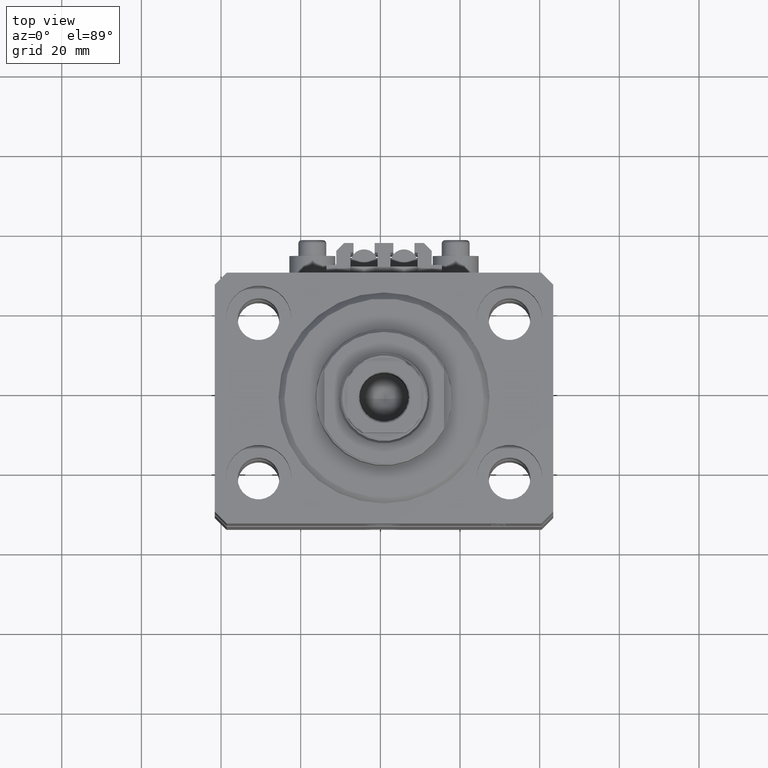
[diagram: clean part render]
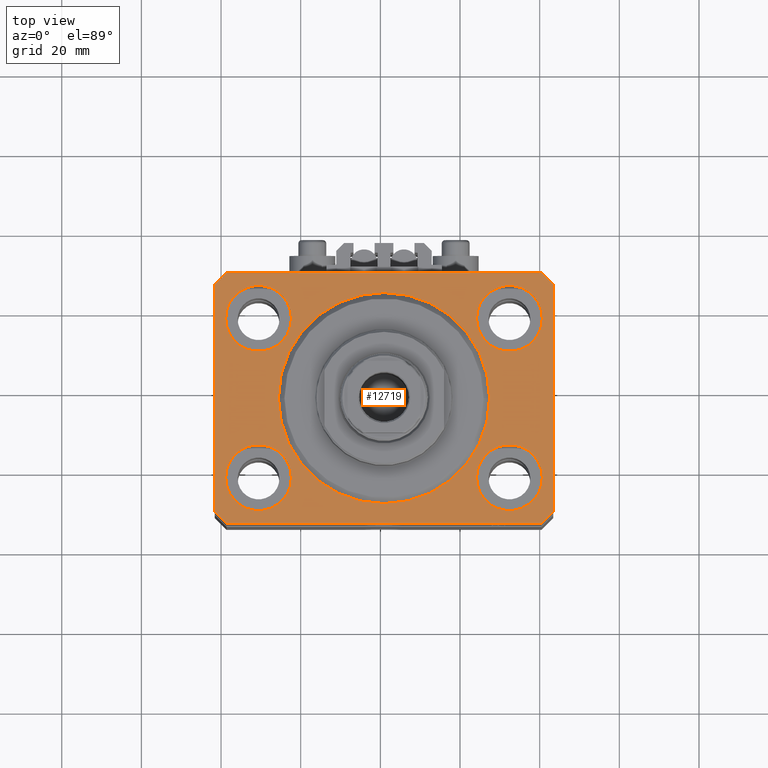
[diagram: same view with one face highlighted and labeled with its STEP entity id]
A machine part, top view. The second image highlights one B-rep face of the part: STEP entity #12719.
In plain terms, the highlighted planar face has unit normal (0, 0, 1).
Its self-contained STEP definition (entity closure, byte-faithful):
#265 = CARTESIAN_POINT ( 'NONE',  ( -31.50000000000000000, 20.00000000000000000, 0.000000000000000000 ) ) ;
#335 = CARTESIAN_POINT ( 'NONE',  ( 39.74999999999999289, -20.00000000000000000, 0.000000000000000000 ) ) ;
#638 = AXIS2_PLACEMENT_3D ( 'NONE', #36630, #36871, #33166 ) ;
#776 = VERTEX_POINT ( 'NONE', #40071 ) ;
#1061 = EDGE_CURVE ( 'NONE', #18267, #28184, #1421, .T. ) ;
#1243 = CIRCLE ( 'NONE', #2035, 8.250000000000000000 ) ;
#1421 = LINE ( 'NONE', #46703, #17264 ) ;
#1611 = ORIENTED_EDGE ( 'NONE', *, *, #1061, .T. ) ;
#1661 = ORIENTED_EDGE ( 'NONE', *, *, #22694, .F. ) ;
#1673 = LINE ( 'NONE', #5385, #27184 ) ;
#1680 = EDGE_CURVE ( 'NONE', #39822, #10659, #7166, .T. ) ;
#2035 = AXIS2_PLACEMENT_3D ( 'NONE', #24439, #24687, #8856 ) ;
#2065 = ORIENTED_EDGE ( 'NONE', *, *, #38775, .F. ) ;
#2165 = EDGE_LOOP ( 'NONE', ( #39794, #46337 ) ) ;
#2565 = CARTESIAN_POINT ( 'NONE',  ( 39.50000000000056843, 31.50000000000000000, 0.000000000000000000 ) ) ;
#2636 = DIRECTION ( 'NONE',  ( 1.000000000000000000, 0.000000000000000000, 0.000000000000000000 ) ) ;
#2697 = CARTESIAN_POINT ( 'NONE',  ( -23.25000000000000000, 20.00000000000000000, 0.000000000000000000 ) ) ;
#3052 = DIRECTION ( 'NONE',  ( 0.000000000000000000, 0.000000000000000000, 1.000000000000000000 ) ) ;
#3279 = VERTEX_POINT ( 'NONE', #26132 ) ;
#3291 = LINE ( 'NONE', #2565, #31458 ) ;
#3451 = CARTESIAN_POINT ( 'NONE',  ( -39.50000000000000711, -31.50000000000000000, 0.000000000000000000 ) ) ;
#3770 = CARTESIAN_POINT ( 'NONE',  ( 31.50000000000000000, 20.00000000000001066, 0.000000000000000000 ) ) ;
#3822 = ORIENTED_EDGE ( 'NONE', *, *, #14583, .F. ) ;
#3859 = VERTEX_POINT ( 'NONE', #29481 ) ;
#4131 = VERTEX_POINT ( 'NONE', #44260 ) ;
#5069 = EDGE_CURVE ( 'NONE', #22679, #23302, #17406, .T. ) ;
#5385 = CARTESIAN_POINT ( 'NONE',  ( 42.50000000000000711, -28.50000000000000355, 0.000000000000000000 ) ) ;
#5583 = CARTESIAN_POINT ( 'NONE',  ( -42.50000000000000000, 28.50000000000000000, 0.000000000000000000 ) ) ;
#5709 = CIRCLE ( 'NONE', #30220, 8.249999999999992895 ) ;
#5800 = FACE_OUTER_BOUND ( 'NONE', #26146, .T. ) ;
#6194 = VECTOR ( 'NONE', #33618, 1000.000000000000000 ) ;
#6278 = CARTESIAN_POINT ( 'NONE',  ( 26.50000000000000355, 0.000000000000000000, 0.000000000000000000 ) ) ;
#6643 = DIRECTION ( 'NONE',  ( 1.000000000000000000, 0.000000000000000000, 0.000000000000000000 ) ) ;
#7166 = LINE ( 'NONE', #3451, #6194 ) ;
#7316 = DIRECTION ( 'NONE',  ( 0.000000000000000000, 0.000000000000000000, 1.000000000000000000 ) ) ;
#7388 = AXIS2_PLACEMENT_3D ( 'NONE', #47874, #47126, #28307 ) ;
#7532 = DIRECTION ( 'NONE',  ( 1.000000000000000000, 0.000000000000000000, 0.000000000000000000 ) ) ;
#8313 = EDGE_CURVE ( 'NONE', #4131, #21910, #20624, .T. ) ;
#8397 = DIRECTION ( 'NONE',  ( 0.000000000000000000, 0.000000000000000000, 1.000000000000000000 ) ) ;
#8634 = VERTEX_POINT ( 'NONE', #28979 ) ;
#8856 = DIRECTION ( 'NONE',  ( 1.000000000000000000, 0.000000000000000000, 0.000000000000000000 ) ) ;
#9256 = EDGE_CURVE ( 'NONE', #40207, #39822, #35163, .T. ) ;
#9320 = CARTESIAN_POINT ( 'NONE',  ( 39.50000000000000711, -31.50000000000000000, 0.000000000000000000 ) ) ;
#9580 = AXIS2_PLACEMENT_3D ( 'NONE', #3770, #3052, #14691 ) ;
#9787 = VERTEX_POINT ( 'NONE', #14103 ) ;
#9870 = DIRECTION ( 'NONE',  ( 0.000000000000000000, 0.000000000000000000, 1.000000000000000000 ) ) ;
#10145 = EDGE_LOOP ( 'NONE', ( #44827, #15097 ) ) ;
#10161 = AXIS2_PLACEMENT_3D ( 'NONE', #26779, #15892, #12174 ) ;
#10659 = VERTEX_POINT ( 'NONE', #9320 ) ;
#11239 = ORIENTED_EDGE ( 'NONE', *, *, #1680, .T. ) ;
#11374 = CIRCLE ( 'NONE', #17711, 8.250000000000000000 ) ;
#11744 = CIRCLE ( 'NONE', #10161, 8.250000000000000000 ) ;
#11810 = CARTESIAN_POINT ( 'NONE',  ( -39.75000000000000000, -20.00000000000000000, 0.000000000000000000 ) ) ;
#11848 = EDGE_LOOP ( 'NONE', ( #1661, #32286 ) ) ;
#11872 = DIRECTION ( 'NONE',  ( 1.000000000000000000, 0.000000000000000000, 0.000000000000000000 ) ) ;
#12174 = DIRECTION ( 'NONE',  ( 1.000000000000000000, 0.000000000000000000, 0.000000000000000000 ) ) ;
#12719 = ADVANCED_FACE ( 'NONE', ( #17703, #24863, #35473, #24616, #46870, #5800 ), #39444, .T. ) ;
#12873 = ORIENTED_EDGE ( 'NONE', *, *, #38378, .T. ) ;
#13018 = LINE ( 'NONE', #5583, #39520 ) ;
#13234 = CIRCLE ( 'NONE', #40872, 8.250000000000000000 ) ;
#13911 = CARTESIAN_POINT ( 'NONE',  ( -39.50000000000000711, -31.50000000000000000, 0.000000000000000000 ) ) ;
#14103 = CARTESIAN_POINT ( 'NONE',  ( -26.50000000000000355, 3.245314017740486554E-15, 0.000000000000000000 ) ) ;
#14583 = EDGE_CURVE ( 'NONE', #21910, #4131, #5709, .T. ) ;
#14691 = DIRECTION ( 'NONE',  ( 1.000000000000000000, 0.000000000000000000, 0.000000000000000000 ) ) ;
#15097 = ORIENTED_EDGE ( 'NONE', *, *, #38565, .F. ) ;
#15892 = DIRECTION ( 'NONE',  ( 0.000000000000000000, 0.000000000000000000, 1.000000000000000000 ) ) ;
#16169 = DIRECTION ( 'NONE',  ( 0.7071067811865483499, 0.7071067811865466846, 0.000000000000000000 ) ) ;
#16390 = CARTESIAN_POINT ( 'NONE',  ( -42.50000000000000000, -28.50000000000000000, 0.000000000000000000 ) ) ;
#16713 = VECTOR ( 'NONE', #31451, 1000.000000000000000 ) ;
#17264 = VECTOR ( 'NONE', #46950, 1000.000000000000000 ) ;
#17406 = CIRCLE ( 'NONE', #19747, 8.249999999999992895 ) ;
#17703 = FACE_BOUND ( 'NONE', #11848, .T. ) ;
#17711 = AXIS2_PLACEMENT_3D ( 'NONE', #265, #42044, #34141 ) ;
#18088 = EDGE_CURVE ( 'NONE', #776, #3279, #1673, .T. ) ;
#18267 = VERTEX_POINT ( 'NONE', #23659 ) ;
#18941 = CARTESIAN_POINT ( 'NONE',  ( -42.50000000000000000, 28.50000000000000000, 0.000000000000000000 ) ) ;
#19147 = VERTEX_POINT ( 'NONE', #11810 ) ;
#19747 = AXIS2_PLACEMENT_3D ( 'NONE', #19783, #8397, #11872 ) ;
#19750 = CARTESIAN_POINT ( 'NONE',  ( 23.25000000000000355, -20.00000000000000000, 0.000000000000000000 ) ) ;
#19783 = CARTESIAN_POINT ( 'NONE',  ( 31.50000000000000000, -20.00000000000000000, 0.000000000000000000 ) ) ;
#19880 = LINE ( 'NONE', #34939, #20351 ) ;
#20351 = VECTOR ( 'NONE', #16169, 1000.000000000000000 ) ;
#20624 = CIRCLE ( 'NONE', #9580, 8.249999999999992895 ) ;
#20934 = DIRECTION ( 'NONE',  ( 0.000000000000000000, -1.000000000000000000, 0.000000000000000000 ) ) ;
#21182 = CARTESIAN_POINT ( 'NONE',  ( 0.000000000000000000, 0.000000000000000000, 0.000000000000000000 ) ) ;
#21251 = CARTESIAN_POINT ( 'NONE',  ( -23.25000000000000000, -20.00000000000000000, 0.000000000000000000 ) ) ;
#21678 = DIRECTION ( 'NONE',  ( 1.000000000000000000, 0.000000000000000000, 0.000000000000000000 ) ) ;
#21693 = VECTOR ( 'NONE', #39941, 1000.000000000000114 ) ;
#21910 = VERTEX_POINT ( 'NONE', #29118 ) ;
#22679 = VERTEX_POINT ( 'NONE', #19750 ) ;
#22694 = EDGE_CURVE ( 'NONE', #43598, #19147, #1243, .T. ) ;
#23302 = VERTEX_POINT ( 'NONE', #335 ) ;
#23333 = EDGE_CURVE ( 'NONE', #10659, #776, #19880, .T. ) ;
#23659 = CARTESIAN_POINT ( 'NONE',  ( -39.50000000000000711, 31.50000000000000000, 0.000000000000000000 ) ) ;
#24439 = CARTESIAN_POINT ( 'NONE',  ( -31.50000000000000000, -20.00000000000000000, 0.000000000000000000 ) ) ;
#24616 = FACE_BOUND ( 'NONE', #10145, .T. ) ;
#24620 = CARTESIAN_POINT ( 'NONE',  ( 42.50000000000051870, 28.49999999999995381, 0.000000000000000000 ) ) ;
#24687 = DIRECTION ( 'NONE',  ( 0.000000000000000000, 0.000000000000000000, 1.000000000000000000 ) ) ;
#24863 = FACE_BOUND ( 'NONE', #2165, .T. ) ;
#24876 = ORIENTED_EDGE ( 'NONE', *, *, #9256, .T. ) ;
#25557 = EDGE_CURVE ( 'NONE', #43613, #8634, #11374, .T. ) ;
#26132 = CARTESIAN_POINT ( 'NONE',  ( 42.50000000000051870, 28.49999999999995381, 0.000000000000000000 ) ) ;
#26146 = EDGE_LOOP ( 'NONE', ( #12873, #1611, #37621, #24876, #11239, #38783, #28850, #40144 ) ) ;
#26339 = EDGE_CURVE ( 'NONE', #3279, #3859, #32763, .T. ) ;
#26779 = CARTESIAN_POINT ( 'NONE',  ( -31.50000000000000000, 20.00000000000000000, 0.000000000000000000 ) ) ;
#27184 = VECTOR ( 'NONE', #43482, 1000.000000000000000 ) ;
#27514 = CIRCLE ( 'NONE', #638, 26.50000000000000355 ) ;
#27680 = EDGE_CURVE ( 'NONE', #23302, #22679, #35955, .T. ) ;
#28184 = VERTEX_POINT ( 'NONE', #18941 ) ;
#28307 = DIRECTION ( 'NONE',  ( 1.000000000000000000, 0.000000000000000000, -0.000000000000000000 ) ) ;
#28850 = ORIENTED_EDGE ( 'NONE', *, *, #18088, .T. ) ;
#28979 = CARTESIAN_POINT ( 'NONE',  ( -39.75000000000000000, 20.00000000000000000, 0.000000000000000000 ) ) ;
#29118 = CARTESIAN_POINT ( 'NONE',  ( 23.25000000000000355, 20.00000000000001066, 0.000000000000000000 ) ) ;
#29342 = CARTESIAN_POINT ( 'NONE',  ( -31.50000000000000000, -20.00000000000000000, 0.000000000000000000 ) ) ;
#29481 = CARTESIAN_POINT ( 'NONE',  ( 39.50000000000056843, 31.50000000000000000, 0.000000000000000000 ) ) ;
#30220 = AXIS2_PLACEMENT_3D ( 'NONE', #41645, #30276, #7532 ) ;
#30276 = DIRECTION ( 'NONE',  ( 0.000000000000000000, 0.000000000000000000, 1.000000000000000000 ) ) ;
#31451 = DIRECTION ( 'NONE',  ( 0.7071067811865471286, -0.7071067811865479058, 0.000000000000000000 ) ) ;
#31458 = VECTOR ( 'NONE', #44113, 1000.000000000000000 ) ;
#32286 = ORIENTED_EDGE ( 'NONE', *, *, #33366, .F. ) ;
#32548 = DIRECTION ( 'NONE',  ( 0.000000000000000000, 0.000000000000000000, 1.000000000000000000 ) ) ;
#32589 = EDGE_LOOP ( 'NONE', ( #44239, #2065 ) ) ;
#32763 = LINE ( 'NONE', #24620, #21693 ) ;
#33166 = DIRECTION ( 'NONE',  ( 1.000000000000000000, 0.000000000000000000, 0.000000000000000000 ) ) ;
#33366 = EDGE_CURVE ( 'NONE', #19147, #43598, #13234, .T. ) ;
#33618 = DIRECTION ( 'NONE',  ( 1.000000000000000000, 0.000000000000000000, 0.000000000000000000 ) ) ;
#34141 = DIRECTION ( 'NONE',  ( 1.000000000000000000, 0.000000000000000000, 0.000000000000000000 ) ) ;
#34841 = CIRCLE ( 'NONE', #41983, 26.50000000000000355 ) ;
#34939 = CARTESIAN_POINT ( 'NONE',  ( 39.50000000000000711, -31.50000000000000000, 0.000000000000000000 ) ) ;
#35163 = LINE ( 'NONE', #16390, #16713 ) ;
#35473 = FACE_BOUND ( 'NONE', #46361, .T. ) ;
#35955 = CIRCLE ( 'NONE', #37550, 8.249999999999992895 ) ;
#36630 = CARTESIAN_POINT ( 'NONE',  ( 0.000000000000000000, 0.000000000000000000, 0.000000000000000000 ) ) ;
#36871 = DIRECTION ( 'NONE',  ( 0.000000000000000000, 0.000000000000000000, 1.000000000000000000 ) ) ;
#37550 = AXIS2_PLACEMENT_3D ( 'NONE', #44471, #9870, #6643 ) ;
#37621 = ORIENTED_EDGE ( 'NONE', *, *, #41899, .T. ) ;
#38378 = EDGE_CURVE ( 'NONE', #3859, #18267, #3291, .T. ) ;
#38565 = EDGE_CURVE ( 'NONE', #8634, #43613, #11744, .T. ) ;
#38775 = EDGE_CURVE ( 'NONE', #9787, #43292, #27514, .T. ) ;
#38783 = ORIENTED_EDGE ( 'NONE', *, *, #23333, .T. ) ;
#39444 = PLANE ( 'NONE',  #7388 ) ;
#39520 = VECTOR ( 'NONE', #20934, 1000.000000000000000 ) ;
#39794 = ORIENTED_EDGE ( 'NONE', *, *, #27680, .F. ) ;
#39822 = VERTEX_POINT ( 'NONE', #13911 ) ;
#39941 = DIRECTION ( 'NONE',  ( -0.7071067811865356934, 0.7071067811865594521, 0.000000000000000000 ) ) ;
#40071 = CARTESIAN_POINT ( 'NONE',  ( 42.50000000000000711, -28.50000000000000355, 0.000000000000000000 ) ) ;
#40144 = ORIENTED_EDGE ( 'NONE', *, *, #26339, .T. ) ;
#40207 = VERTEX_POINT ( 'NONE', #41985 ) ;
#40872 = AXIS2_PLACEMENT_3D ( 'NONE', #29342, #7316, #2636 ) ;
#41645 = CARTESIAN_POINT ( 'NONE',  ( 31.50000000000000000, 20.00000000000001066, 0.000000000000000000 ) ) ;
#41899 = EDGE_CURVE ( 'NONE', #28184, #40207, #13018, .T. ) ;
#41983 = AXIS2_PLACEMENT_3D ( 'NONE', #21182, #32548, #21678 ) ;
#41985 = CARTESIAN_POINT ( 'NONE',  ( -42.50000000000000000, -28.50000000000000000, 0.000000000000000000 ) ) ;
#42044 = DIRECTION ( 'NONE',  ( 0.000000000000000000, 0.000000000000000000, 1.000000000000000000 ) ) ;
#43292 = VERTEX_POINT ( 'NONE', #6278 ) ;
#43482 = DIRECTION ( 'NONE',  ( 8.886653596232072440E-15, 1.000000000000000000, 0.000000000000000000 ) ) ;
#43598 = VERTEX_POINT ( 'NONE', #21251 ) ;
#43613 = VERTEX_POINT ( 'NONE', #2697 ) ;
#44113 = DIRECTION ( 'NONE',  ( -1.000000000000000000, 0.000000000000000000, 0.000000000000000000 ) ) ;
#44239 = ORIENTED_EDGE ( 'NONE', *, *, #44983, .F. ) ;
#44260 = CARTESIAN_POINT ( 'NONE',  ( 39.74999999999999289, 20.00000000000001066, 0.000000000000000000 ) ) ;
#44320 = ORIENTED_EDGE ( 'NONE', *, *, #8313, .F. ) ;
#44471 = CARTESIAN_POINT ( 'NONE',  ( 31.50000000000000000, -20.00000000000000000, 0.000000000000000000 ) ) ;
#44827 = ORIENTED_EDGE ( 'NONE', *, *, #25557, .F. ) ;
#44983 = EDGE_CURVE ( 'NONE', #43292, #9787, #34841, .T. ) ;
#46337 = ORIENTED_EDGE ( 'NONE', *, *, #5069, .F. ) ;
#46361 = EDGE_LOOP ( 'NONE', ( #44320, #3822 ) ) ;
#46703 = CARTESIAN_POINT ( 'NONE',  ( -39.50000000000000711, 31.50000000000000000, 0.000000000000000000 ) ) ;
#46870 = FACE_BOUND ( 'NONE', #32589, .T. ) ;
#46950 = DIRECTION ( 'NONE',  ( -0.7071067811865471286, -0.7071067811865479058, 0.000000000000000000 ) ) ;
#47126 = DIRECTION ( 'NONE',  ( 0.000000000000000000, 0.000000000000000000, 1.000000000000000000 ) ) ;
#47874 = CARTESIAN_POINT ( 'NONE',  ( 0.000000000000000000, 0.000000000000000000, 0.000000000000000000 ) ) ;